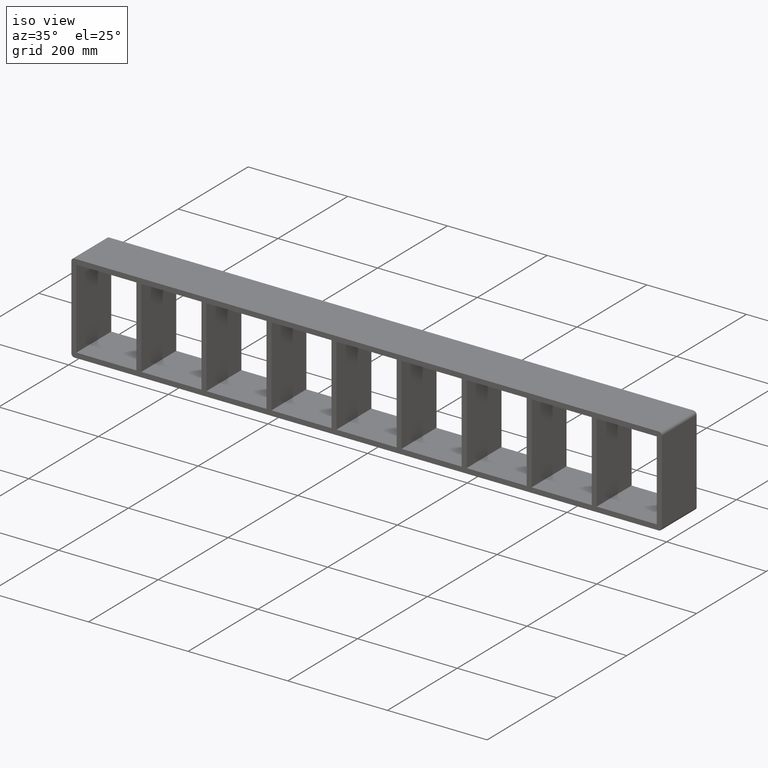
[diagram: clean part render]
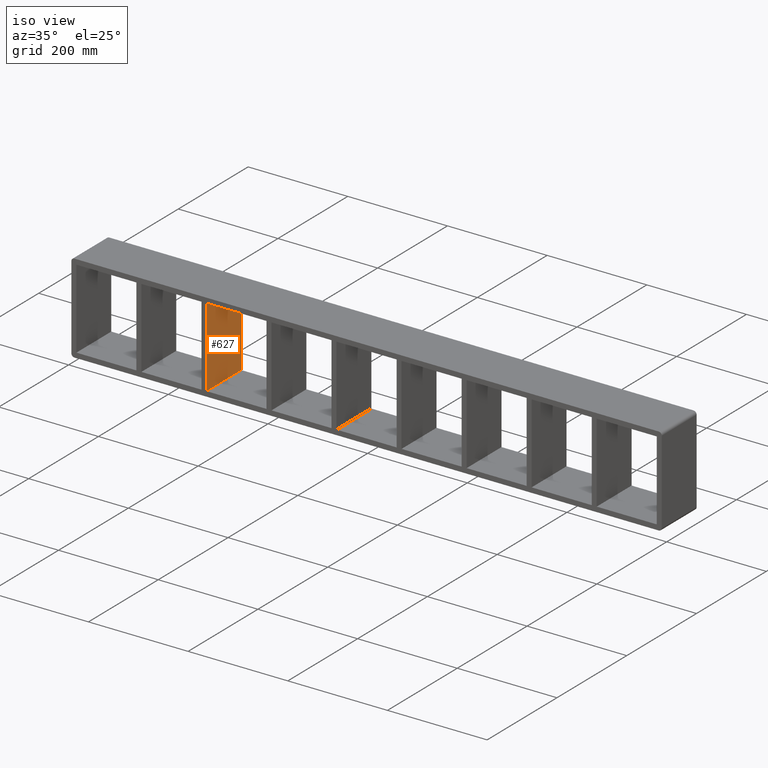
[diagram: same view with one face highlighted and labeled with its STEP entity id]
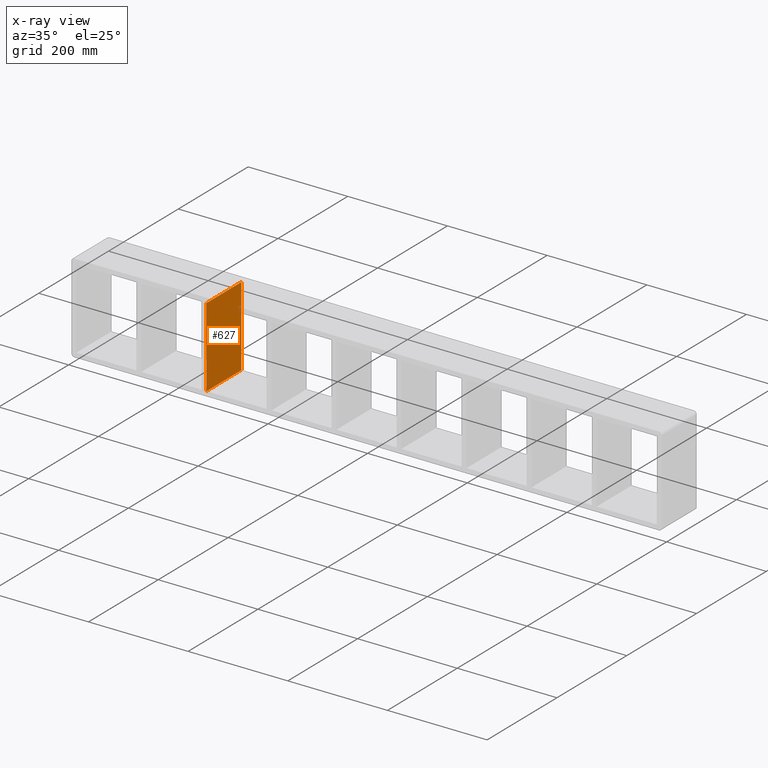
[diagram: x-ray of the same camera — body ghosted, the highlighted face saturated]
A machine part, iso view. The second image highlights one B-rep face of the part: STEP entity #627.
The next image is the same camera in x-ray: the body ghosted, the highlighted face saturated — about 1% of this face is hidden behind the body in this view.
In plain terms, the highlighted planar face has unit normal (1, 0, 0).
Its self-contained STEP definition (entity closure, byte-faithful):
#588=CARTESIAN_POINT('',(-321.25000000000637,-3.0,79.75));
#589=DIRECTION('',(1.0,0.0,0.0));
#590=DIRECTION('',(0.0,0.0,-1.0));
#591=AXIS2_PLACEMENT_3D('',#588,#589,#590);
#592=PLANE('',#591);
#593=CARTESIAN_POINT('',(-321.25000000000637,-3.0,79.75));
#594=VERTEX_POINT('',#593);
#595=CARTESIAN_POINT('',(-321.25000000000637,-3.0,-79.750000000003766));
#596=VERTEX_POINT('',#595);
#597=CARTESIAN_POINT('',(-321.25000000000637,-3.0,79.75));
#598=DIRECTION('',(0.0,0.0,-1.0));
#599=VECTOR('',#598,159.50000000000375);
#600=LINE('',#597,#599);
#601=EDGE_CURVE('',#594,#596,#600,.T.);
#602=ORIENTED_EDGE('',*,*,#601,.T.);
#603=CARTESIAN_POINT('',(-321.25000000000637,97.0,-79.750000000003766));
#604=VERTEX_POINT('',#603);
#605=CARTESIAN_POINT('',(-321.25000000000637,97.0,-79.750000000000014));
#606=DIRECTION('',(0.0,-1.0,0.0));
#607=VECTOR('',#606,100.0);
#608=LINE('',#605,#607);
#609=EDGE_CURVE('',#604,#596,#608,.T.);
#610=ORIENTED_EDGE('',*,*,#609,.F.);
#611=CARTESIAN_POINT('',(-321.25000000000637,97.0,79.75));
#612=VERTEX_POINT('',#611);
#613=CARTESIAN_POINT('',(-321.25000000000637,97.0,79.75));
#614=DIRECTION('',(0.0,0.0,-1.0));
#615=VECTOR('',#614,159.50000000000375);
#616=LINE('',#613,#615);
#617=EDGE_CURVE('',#612,#604,#616,.T.);
#618=ORIENTED_EDGE('',*,*,#617,.F.);
#619=CARTESIAN_POINT('',(-321.25000000000637,-3.0,79.75));
#620=DIRECTION('',(0.0,1.0,0.0));
#621=VECTOR('',#620,100.0);
#622=LINE('',#619,#621);
#623=EDGE_CURVE('',#594,#612,#622,.T.);
#624=ORIENTED_EDGE('',*,*,#623,.F.);
#625=EDGE_LOOP('',(#602,#610,#618,#624));
#626=FACE_OUTER_BOUND('',#625,.T.);
#627=ADVANCED_FACE('',(#626),#592,.T.);